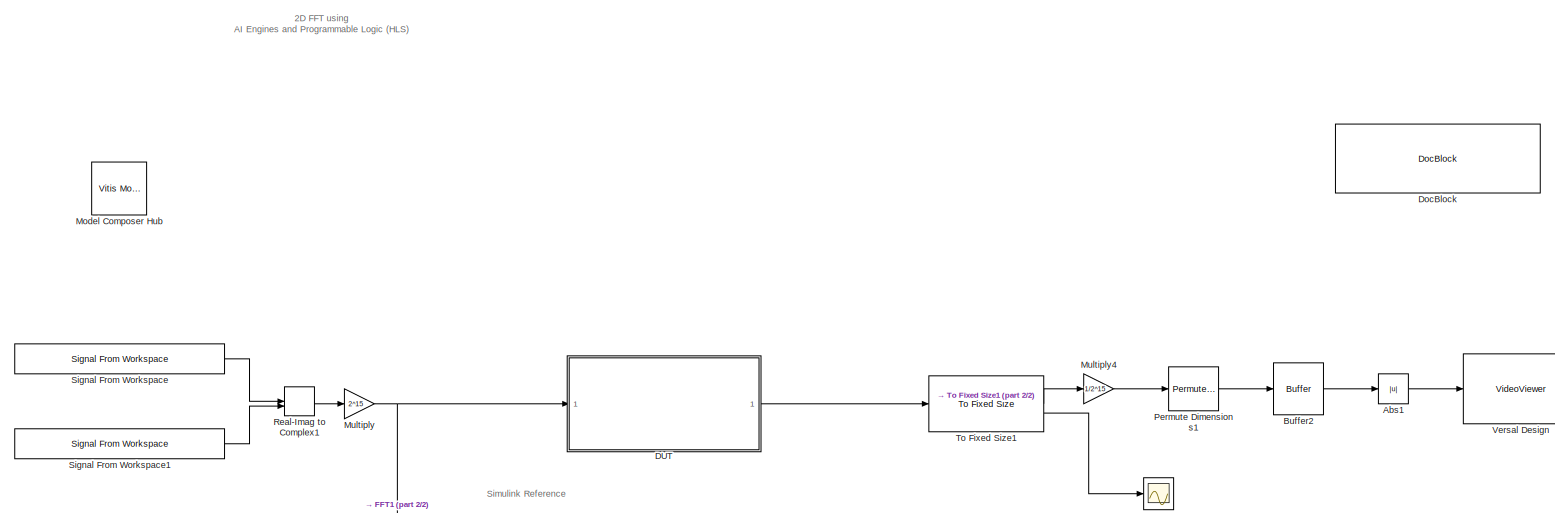
[diagram: root canvas - part 1/2, most of the canvas]
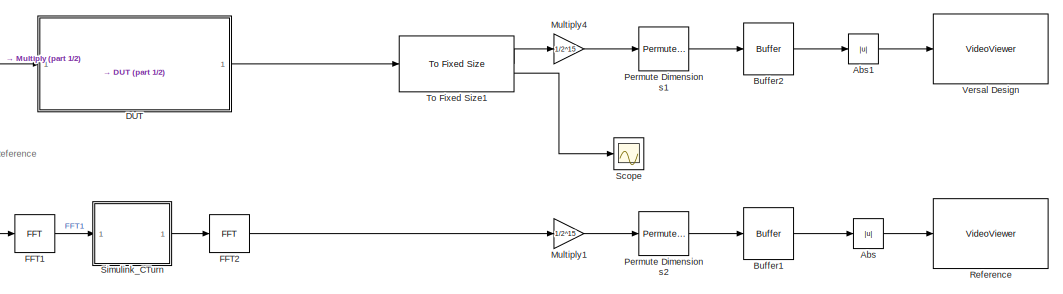
[diagram: root canvas - part 2/2, bottom center region]
MODEL slx_5633b882e8b2
KIND model
CONFIG AbsTol = auto
CONFIG EnableMultiTasking = off
CONFIG FixedStep = auto
CONFIG MaxStep = auto
CONFIG MinStep = auto
CONFIG PreLoadFcn = % display k space image & load arrays for\n% simulation run\nMRIDemo_PreloadFcn;\n
CONFIG RelTol = 1e-3
CONFIG SampleTimeConstraint = Unconstrained
CONFIG SolverName = VariableStepAuto
CONFIG StartTime = 0.0
CONFIG StopTime = 256*256*2
BLOCK [Abs] Abs
  SaturateOnIntegerOverflow = off
BLOCK [Abs] Abs1
  SaturateOnIntegerOverflow = off
BLOCK [Buffer] Buffer1
  N = 256
  OutputFrames = off
BLOCK [Buffer] Buffer2
  N = 256
  OutputFrames = off
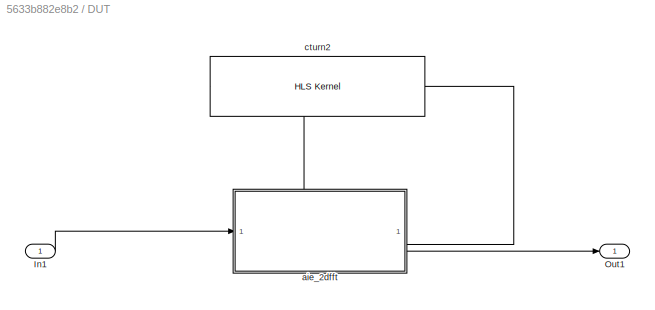
BLOCK [SubSystem] DUT
BLOCK [Inport] DUT/In1
BLOCK [Outport] DUT/Out1
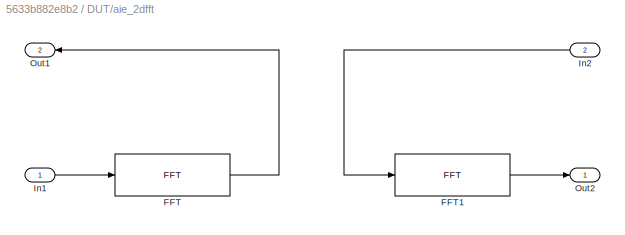
BLOCK [SubSystem] DUT/aie_2dfft
  PortSchema = {"entries":[{"content":{"sides":[{"content":{"connectorIds":["Out2","In1"]},"type":"ConnectorPlacement.EquallySpacedRectSide","uuid":"79f05cc3-f11a-4cde-8fa1-dcc9430b22c8"},{"content":{"connectorIds":["In2","Out1"],"side":"RIGHT"},"type":"ConnectorPlacement.EquallySpacedRectSide","uuid":"dca5e86a-9095-4cba-ba8f-7e749e0dbd7e"},{"content":{"connectorIds":[],"side":"TOP"},"type":"ConnectorPlacement.E...<+255ch>
BLOCK [Reference] DUT/aie_2dfft/FFT  REF=aieDSP/FFT
  SourceBlock = aieDSP/FFT
  SourceType = FFT
BLOCK [Reference] DUT/aie_2dfft/FFT1  REF=aieDSP/FFT
  SourceBlock = aieDSP/FFT
  SourceType = FFT
BLOCK [Inport] DUT/aie_2dfft/In1
BLOCK [Inport] DUT/aie_2dfft/In2
  NameLocation = top
  Port = 2
BLOCK [Outport] DUT/aie_2dfft/Out1
  NameLocation = top
  Port = 2
BLOCK [Outport] DUT/aie_2dfft/Out2
BLOCK [Reference] DUT/cturn2  REF=hlsBasic/HLS Kernel
  SourceBlock = hlsBasic/HLS Kernel
  SourceType = HLS Kernel Function
BLOCK [Reference] DocBlock  REF=simulink/Model-Wide
Utilities/DocBlock
  SourceBlock = simulink/Model-Wide\nUtilities/DocBlock
  SourceType = DocBlock
  UserDataPersistent = on
BLOCK [Reference] FFT1  REF=dspxfrm3/FFT
  SourceBlock = dspxfrm3/FFT
  SourceType = FFT
BLOCK [Reference] FFT2  REF=dspxfrm3/FFT
  SourceBlock = dspxfrm3/FFT
  SourceType = FFT
BLOCK [Reference] Model Composer Hub  REF=vmcUtilities/Vitis Model Composer Hub
  SourceBlock = vmcUtilities/Vitis Model Composer Hub
  SourceType = VMC Hub
  Tag = genX
  UserDataPersistent = on
BLOCK [Gain] Multiply
  Gain = 2^15
  OutDataTypeStr = int16
BLOCK [Gain] Multiply1
  Gain = 1/2^15
  OutDataTypeStr = single
BLOCK [Gain] Multiply4
  Gain = 1/2^15
  OutDataTypeStr = single
BLOCK [PermuteDimensions] Permute Dimensions1
BLOCK [PermuteDimensions] Permute Dimensions2
BLOCK [RealImagToComplex] Real-Imag to Complex1
BLOCK [VideoViewer] Reference
  Description = Simulink MRI Display
  FigPos = [147 767 631 287]
  ScopeSpecificationString = vipscopes.VideoViewerScopeCfg('CurrentConfiguration', extmgr.ConfigurationSet(extmgr.Configuration('Core','General UI',true),extmgr.Configuration('Core','Source UI',true),extmgr.Configuration('Sources','WiredSimulink',true),extmgr.Configuration('Visuals','Video',true),extmgr.Configuration('Tools','Image Navigation Tools',true,'Magnification',1.70625),extmgr.Configuration('Tools','Image Tool',true)...<+99ch>
  colormapValue = gray(256)
BLOCK [Scope] Scope
  Floating = off
  NumInputPorts = 1
  ScopeSpecificationString = Simulink.scopes.TimeScopeBlockCfg('CurrentConfiguration', extmgr.ConfigurationSet(extmgr.Configuration('Core','General UI',true,'DisplayFullSourceName',false,'ShowMainToolbar',true),extmgr.Configuration('Sources','WiredSimulink',true,'DataLogging',false,'DataLoggingVariableName','ScopeData','DataLoggingLimitDataPoints',false,'DataLoggingMaxPoints','5000','DataLoggingDecimateData',false,'DataLoggin...<+1534ch>
BLOCK [Reference] Signal From Workspace  REF=dspsrcs4/Signal From
Workspace
  SourceBlock = dspsrcs4/Signal From\nWorkspace
  SourceType = Signal From Workspace
BLOCK [Reference] Signal From Workspace1  REF=dspsrcs4/Signal From
Workspace
  SourceBlock = dspsrcs4/Signal From\nWorkspace
  SourceType = Signal From Workspace
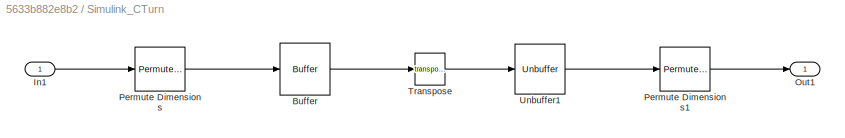
BLOCK [SubSystem] Simulink_CTurn
BLOCK [Buffer] Simulink_CTurn/Buffer
  N = 256
  OutputFrames = off
BLOCK [Inport] Simulink_CTurn/In1
BLOCK [Outport] Simulink_CTurn/Out1
  VectorParamsAs1DForOutWhenUnconnected = off
BLOCK [PermuteDimensions] Simulink_CTurn/Permute Dimensions
BLOCK [PermuteDimensions] Simulink_CTurn/Permute Dimensions1
BLOCK [Math] Simulink_CTurn/Transpose
  Operator = transpose
  SignedPower = on
BLOCK [Unbuffer] Simulink_CTurn/Unbuffer1
BLOCK [Reference] To Fixed Size1  REF=aieUtilities/To Fixed Size
  SourceBlock = aieUtilities/To Fixed Size
  SourceType = To Fixed Size
BLOCK [VideoViewer] Versal Design
  Description = Simulink MRI Display
  FigPos = [1055 882 683 266]
  ScopeSpecificationString = vipscopes.VideoViewerScopeCfg('CurrentConfiguration', extmgr.ConfigurationSet(extmgr.Configuration('Core','General UI',true),extmgr.Configuration('Core','Source UI',true),extmgr.Configuration('Sources','WiredSimulink',true),extmgr.Configuration('Visuals','Video',true),extmgr.Configuration('Tools','Image Navigation Tools',true,'Magnification',1.70625),extmgr.Configuration('Tools','Image Tool',true)...<+100ch>
  colormapValue = gray(256)
ANNOTATION (root): 2D FFT using AI Engines and Programmable Logic (HLS)
ANNOTATION (root): Simulink Reference
LINE Abs1:1 -> Versal Design:1
LINE Abs:1 -> Reference:1
LINE Buffer1:1 -> Abs:1
LINE Buffer2:1 -> Abs1:1
LINE DUT/In1:1 -> DUT/aie_2dfft:1
LINE DUT/aie_2dfft/FFT1:1 -> DUT/aie_2dfft/Out2:1
LINE DUT/aie_2dfft/FFT:1 -> DUT/aie_2dfft/Out1:1
LINE DUT/aie_2dfft/In1:1 -> DUT/aie_2dfft/FFT:1
LINE DUT/aie_2dfft/In2:1 -> DUT/aie_2dfft/FFT1:1
LINE DUT/aie_2dfft:1 -> DUT/Out1:1
LINE DUT/aie_2dfft:2 -> DUT/cturn2:1
LINE DUT/cturn2:1 -> DUT/aie_2dfft:2
LINE DUT:1 -> To Fixed Size1:1
LINE FFT1:1 -> Simulink_CTurn:1
LINE FFT2:1 -> Multiply1:1
LINE Multiply1:1 -> Permute Dimensions2:1
LINE Multiply4:1 -> Permute Dimensions1:1
NET Multiply:1 -> DUT:1, FFT1:1
LINE Permute Dimensions1:1 -> Buffer2:1
LINE Permute Dimensions2:1 -> Buffer1:1
LINE Real-Imag to Complex1:1 -> Multiply:1
LINE Signal From Workspace1:1 -> Real-Imag to Complex1:2
LINE Signal From Workspace:1 -> Real-Imag to Complex1:1
LINE Simulink_CTurn/Buffer:1 -> Simulink_CTurn/Transpose:1
LINE Simulink_CTurn/In1:1 -> Simulink_CTurn/Permute Dimensions:1
LINE Simulink_CTurn/Permute Dimensions1:1 -> Simulink_CTurn/Out1:1
LINE Simulink_CTurn/Permute Dimensions:1 -> Simulink_CTurn/Buffer:1
LINE Simulink_CTurn/Transpose:1 -> Simulink_CTurn/Unbuffer1:1
LINE Simulink_CTurn/Unbuffer1:1 -> Simulink_CTurn/Permute Dimensions1:1
LINE Simulink_CTurn:1 -> FFT2:1
LINE To Fixed Size1:1 -> Multiply4:1
LINE To Fixed Size1:2 -> Scope:1
note: NET lines group one-source signal fan-out (src -> all destinations, sorted); 1:1 wires keep LINE
